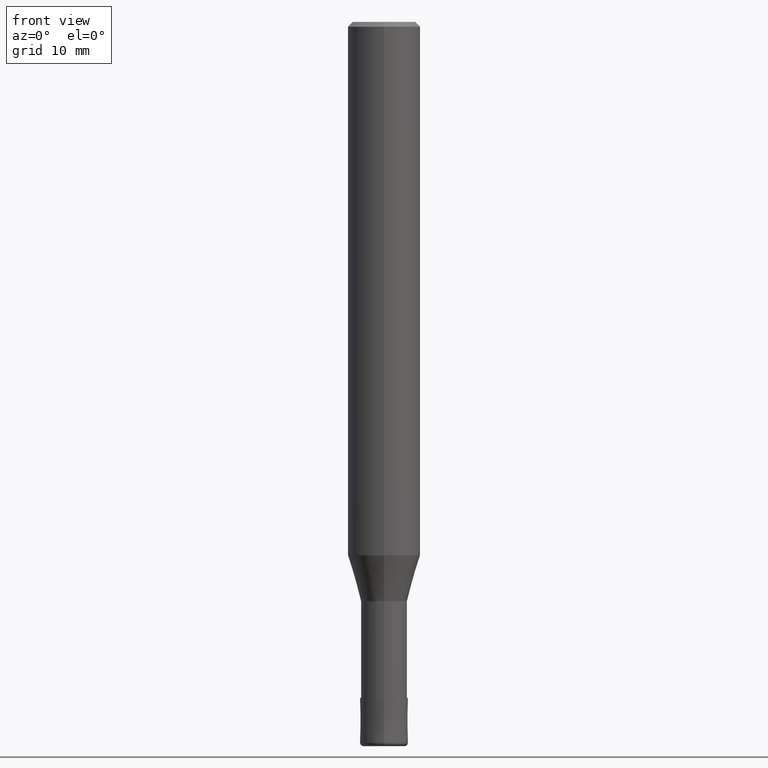
[diagram: clean part render]
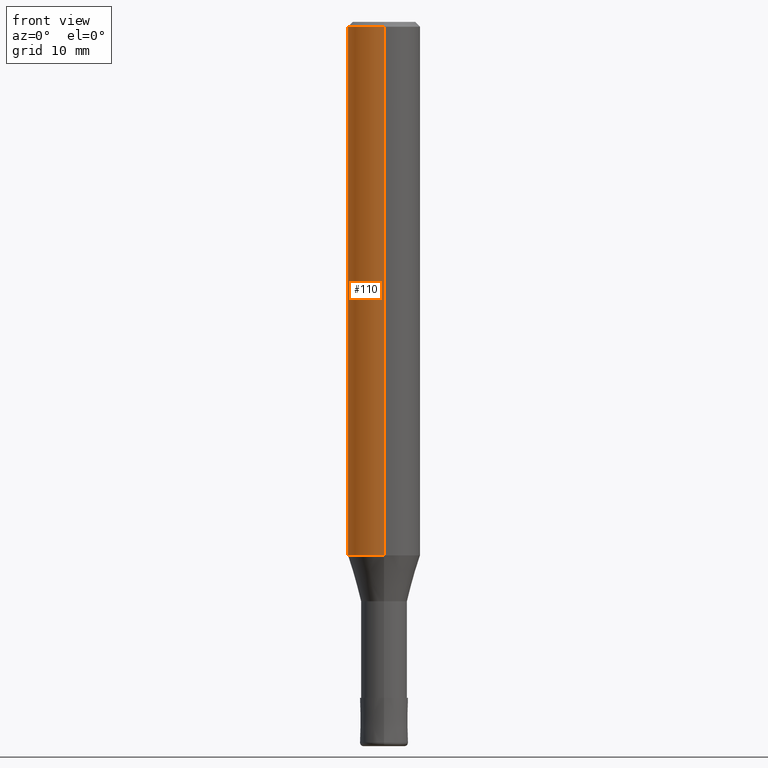
[diagram: same view with one face highlighted and labeled with its STEP entity id]
A machine part, front view. The second image highlights one B-rep face of the part: STEP entity #110.
In plain terms, the highlighted cylindrical surface (edge-blend (fillet) strip) has radius 3 mm, axis along (-0, -0, 1).
Its self-contained STEP definition (entity closure, byte-faithful):
#104=VERTEX_POINT('',#257);
#110=ADVANCED_FACE('',(#264),#265,.T.);
#122=VERTEX_POINT('',#280);
#130=VERTEX_POINT('',#289);
#178=EDGE_CURVE('',#188,#130,#343,.T.);
#188=VERTEX_POINT('',#354);
#200=EDGE_CURVE('',#104,#188,#367,.T.);
#210=EDGE_CURVE('',#130,#122,#377,.T.);
#232=EDGE_CURVE('',#104,#122,#403,.T.);
#257=CARTESIAN_POINT('',(3.67381906146713E-016,-3.0,-44.199));
#264=FACE_OUTER_BOUND('',#429,.T.);
#265=CYLINDRICAL_SURFACE('',#430,3.0);
#280=CARTESIAN_POINT('',(0.0,3.0,-44.199));
#289=CARTESIAN_POINT('',(0.0,3.0,-0.399999999999999));
#343=CIRCLE('',#528,3.0);
#354=CARTESIAN_POINT('',(3.67381906146713E-016,-3.0,-0.399999999999999));
#367=LINE('',#557,#558);
#377=LINE('',#572,#573);
#403=CIRCLE('',#604,3.0);
#429=EDGE_LOOP('',(#619,#620,#621,#622));
#430=AXIS2_PLACEMENT_3D('',#623,#624,#625);
#528=AXIS2_PLACEMENT_3D('',#724,#725,#726);
#557=CARTESIAN_POINT('',(3.67381906146713E-016,-3.0,-22.2995));
#558=VECTOR('',#753,1.0);
#572=CARTESIAN_POINT('',(-3.67381906146713E-016,3.0,-22.2995));
#573=VECTOR('',#763,1.0);
#604=AXIS2_PLACEMENT_3D('',#803,#804,#805);
#619=ORIENTED_EDGE('',*,*,#210,.T.);
#620=ORIENTED_EDGE('',*,*,#232,.F.);
#621=ORIENTED_EDGE('',*,*,#200,.T.);
#622=ORIENTED_EDGE('',*,*,#178,.T.);
#623=CARTESIAN_POINT('',(0.0,0.0,-22.2995));
#624=DIRECTION('',(-0.0,-0.0,1.0));
#625=DIRECTION('',(0.0,1.0,0.0));
#724=CARTESIAN_POINT('',(0.0,0.0,-0.399999999999999));
#725=DIRECTION('',(0.0,0.0,-1.0));
#726=DIRECTION('',(0.0,1.0,0.0));
#753=DIRECTION('',(-0.0,-0.0,1.0));
#763=DIRECTION('',(0.0,0.0,-1.0));
#803=CARTESIAN_POINT('',(0.0,0.0,-44.199));
#804=DIRECTION('',(0.0,0.0,-1.0));
#805=DIRECTION('',(0.0,1.0,0.0));